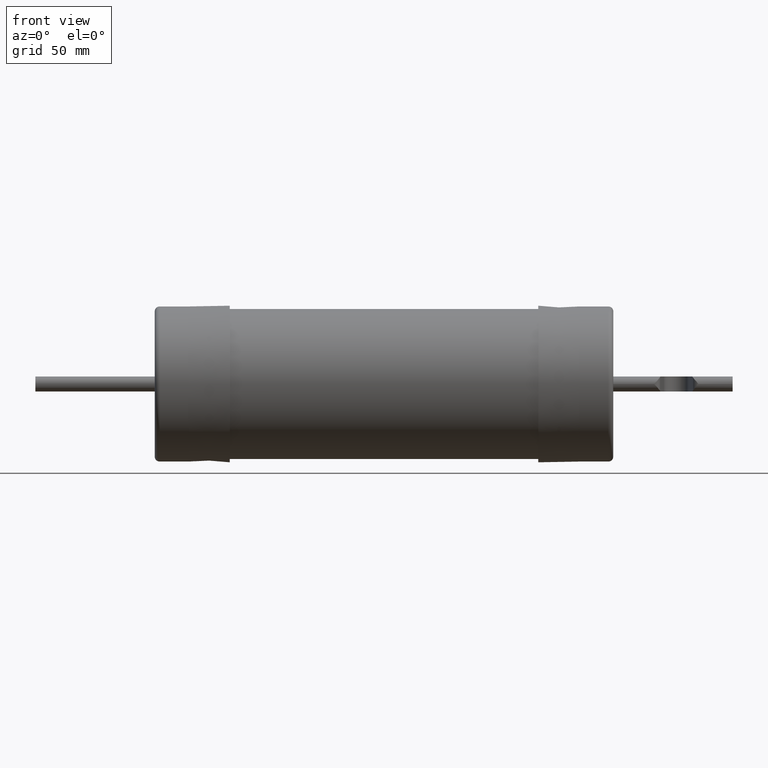
[diagram: clean part render]
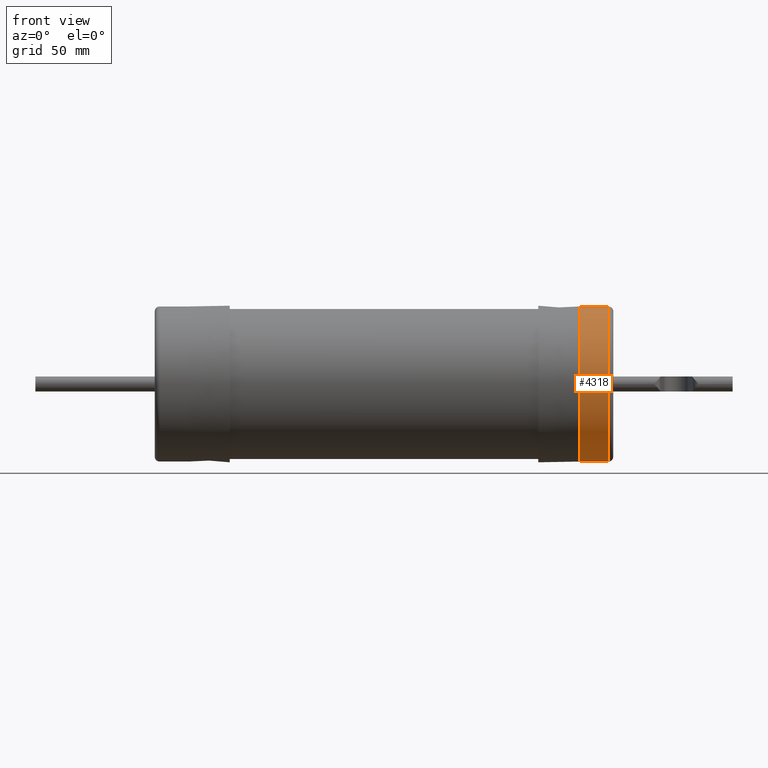
[diagram: same view with one face highlighted and labeled with its STEP entity id]
A machine part, front view. The second image highlights one B-rep face of the part: STEP entity #4318.
In plain terms, the highlighted cylindrical surface (bore or boss wall) has radius 32.8295 mm, axis along (1, 0, -0).
Its self-contained STEP definition (entity closure, byte-faithful):
#17 = FACE_OUTER_BOUND ( 'NONE', #538, .T. ) ;
#44 = CARTESIAN_POINT ( 'NONE',  ( 3.259726816238731000, 2.174710693278437800E-016, -1.454515392984321000E-016 ) ) ;
#241 = FACE_OUTER_BOUND ( 'NONE', #2773, .T. ) ;
#538 = EDGE_LOOP ( 'NONE', ( #2930 ) ) ;
#605 = CARTESIAN_POINT ( 'NONE',  ( 3.740999999999999700, 3.154534207577302900E-016, -2.109852394067081600E-016 ) ) ;
#636 = CIRCLE ( 'NONE', #4146, 1.292500000000000200 ) ;
#692 = DIRECTION ( 'NONE',  ( 0.0000000000000000000, -1.231653667943532800E-016, -1.000000000000000000 ) ) ;
#1025 = EDGE_CURVE ( 'NONE', #2943, #2943, #2187, .T. ) ;
#1814 = CARTESIAN_POINT ( 'NONE',  ( 3.780999999999999700, 3.235970160990813100E-016, -2.164319339094946100E-016 ) ) ;
#1958 = AXIS2_PLACEMENT_3D ( 'NONE', #1814, #2795, #4012 ) ;
#2120 = VERTEX_POINT ( 'NONE', #2566 ) ;
#2187 = CIRCLE ( 'NONE', #3991, 1.292500000000000400 ) ;
#2566 = CARTESIAN_POINT ( 'NONE',  ( 3.740999999999999700, 1.562621841760286200E-016, -1.292500000000000400 ) ) ;
#2773 = EDGE_LOOP ( 'NONE', ( #3740 ) ) ;
#2795 = DIRECTION ( 'NONE',  ( 1.000000000000000000, 2.035898835337764500E-016, -1.361673625696616300E-016 ) ) ;
#2930 = ORIENTED_EDGE ( 'NONE', *, *, #4426, .F. ) ;
#2943 = VERTEX_POINT ( 'NONE', #4118 ) ;
#3304 = CYLINDRICAL_SURFACE ( 'NONE', #1958, 1.292500000000000200 ) ;
#3602 = DIRECTION ( 'NONE',  ( 1.000000000000000000, 2.035898835337764500E-016, -1.361673625696616300E-016 ) ) ;
#3740 = ORIENTED_EDGE ( 'NONE', *, *, #1025, .T. ) ;
#3888 = DIRECTION ( 'NONE',  ( 0.0000000000000000000, -1.231653667943532800E-016, -1.000000000000000000 ) ) ;
#3991 = AXIS2_PLACEMENT_3D ( 'NONE', #44, #4244, #3888 ) ;
#4012 = DIRECTION ( 'NONE',  ( 0.0000000000000000000, -1.231653667943532800E-016, -1.000000000000000000 ) ) ;
#4118 = CARTESIAN_POINT ( 'NONE',  ( 3.259726816238731000, 5.827983274614210600E-017, -1.292500000000000900 ) ) ;
#4146 = AXIS2_PLACEMENT_3D ( 'NONE', #605, #3602, #692 ) ;
#4244 = DIRECTION ( 'NONE',  ( 1.000000000000000000, 2.035898835337764500E-016, -1.361673625696616300E-016 ) ) ;
#4318 = ADVANCED_FACE ( 'NONE', ( #17, #241 ), #3304, .T. ) ;
#4426 = EDGE_CURVE ( 'NONE', #2120, #2120, #636, .T. ) ;